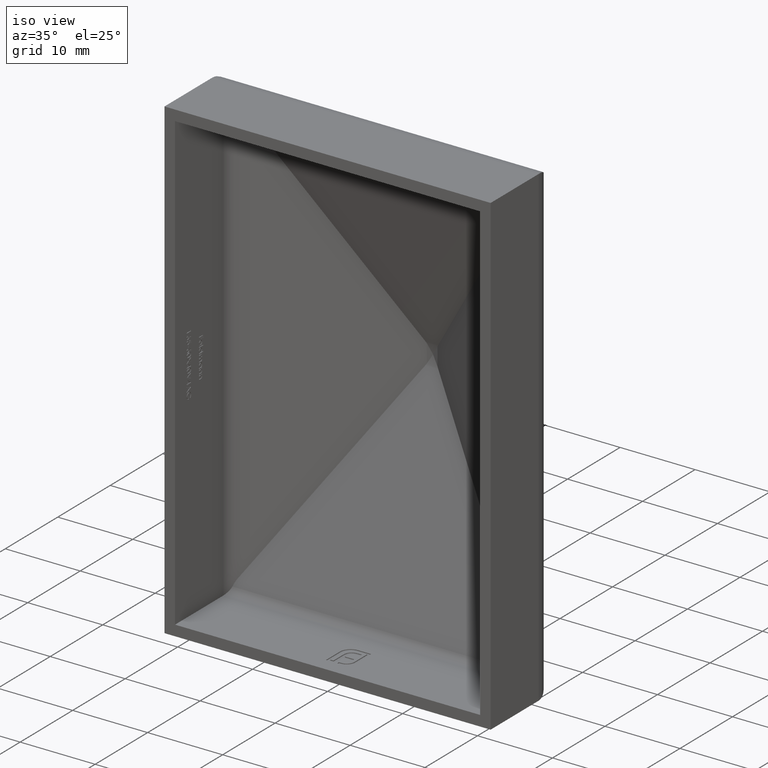
[diagram: clean part render]
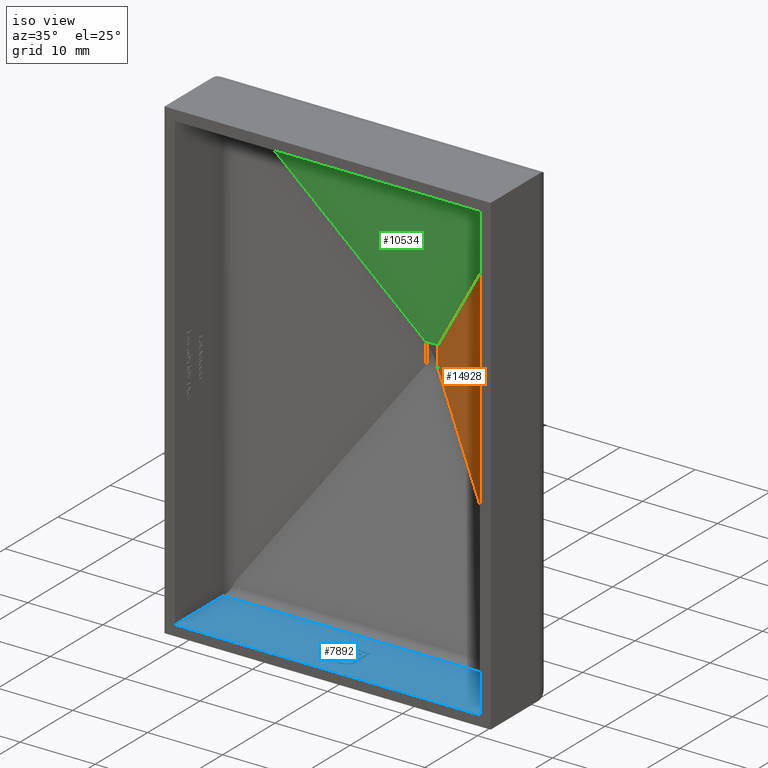
[diagram: same view with three faces highlighted in distinct colors, each labeled with its STEP entity id]
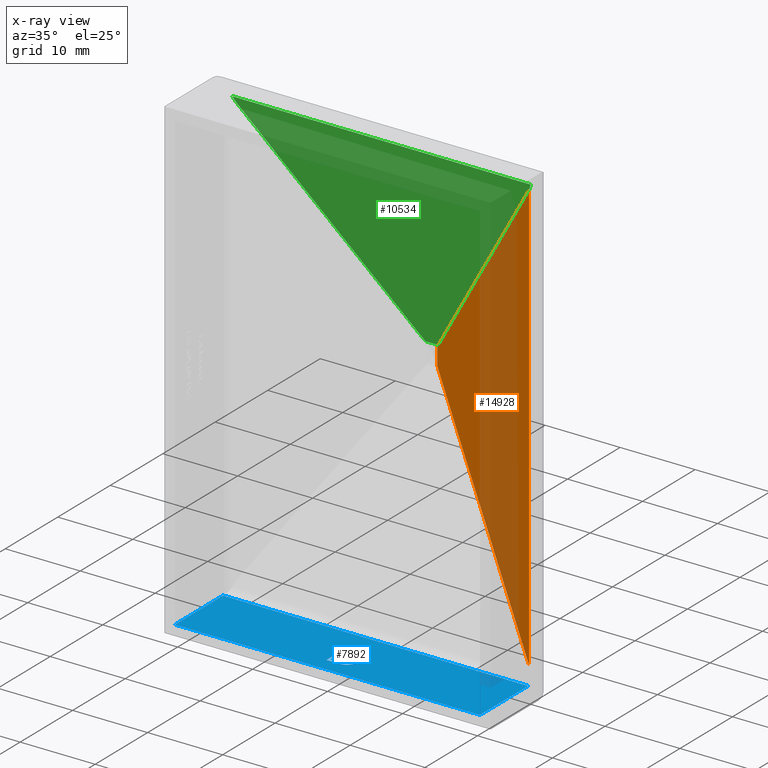
[diagram: x-ray of the same camera — body ghosted, the three highlighted faces saturated]
A machine part, iso view with three faces highlighted in distinct colors.
The next image is the same camera in x-ray (body ghosted, the three faces saturated) — at least one of them is partly hidden behind the body in this view.
Their STEP definitions:

[orange] entity #14928 — the highlighted planar face has unit normal (-0.4465, -0.8948, 0).
#182 = VECTOR ( 'NONE', #15627, 1000.000000000000227 ) ;
#472 = LINE ( 'NONE', #14652, #6614 ) ;
#523 = DIRECTION ( 'NONE',  ( -0.000000000000000000, -0.000000000000000000, -1.000000000000000000 ) ) ;
#860 = CARTESIAN_POINT ( 'NONE',  ( 19.46436875921772014, 10.57586825159577515, -28.65772203017585795 ) ) ;
#1006 = CARTESIAN_POINT ( 'NONE',  ( 0.7584469477729331999, 19.90967544081503959, 1.296075870260551266 ) ) ;
#1114 = CARTESIAN_POINT ( 'NONE',  ( 0.8592270703845148461, 19.85938857217288955, 1.450252933899332852 ) ) ;
#1167 =( BOUNDED_CURVE ( )  B_SPLINE_CURVE ( 3, ( #2247, #1006, #6168, #1114 ),
 .UNSPECIFIED., .F., .F. ) 
 B_SPLINE_CURVE_WITH_KNOTS ( ( 4, 4 ),
 ( 3.416252658695885458, 3.470417346657269864 ),
 .UNSPECIFIED. ) 
 CURVE ( )  GEOMETRIC_REPRESENTATION_ITEM ( )  RATIONAL_B_SPLINE_CURVE ( ( 1.000000000000000000, 0.9997555304909668816, 0.9997555304909668816, 1.000000000000000000 ) ) 
 REPRESENTATION_ITEM ( '' )  );
#1388 = DIRECTION ( 'NONE',  ( 0.8947933760820846461, -0.4464804745110643180, 0.000000000000000000 ) ) ;
#1427 = CARTESIAN_POINT ( 'NONE',  ( 0.7143687592177069279, 19.93166940173134449, -1.218022648407448782 ) ) ;
#1562 = ORIENTED_EDGE ( 'NONE', *, *, #4498, .T. ) ;
#1774 = DIRECTION ( 'NONE',  ( -0.000000000000000000, -0.000000000000000000, -1.000000000000000000 ) ) ;
#1777 = CARTESIAN_POINT ( 'NONE',  ( 19.46436875921772014, 10.57586825159577515, 31.75000000000000000 ) ) ;
#2247 = CARTESIAN_POINT ( 'NONE',  ( 0.7143687592177145884, 19.93166940173134094, 1.218022648407466768 ) ) ;
#2335 = AXIS2_PLACEMENT_3D ( 'NONE', #7646, #5208, #1388 ) ;
#2688 = LINE ( 'NONE', #3726, #16349 ) ;
#2957 = CARTESIAN_POINT ( 'NONE',  ( 0.8067448588618060246, 19.88557593936893753, -1.373504894460034986 ) ) ;
#3599 = EDGE_CURVE ( 'NONE', #12837, #9170, #16006, .T. ) ;
#3726 = CARTESIAN_POINT ( 'NONE',  ( -13.52660217211180793, 27.03757298671160925, 19.58705014530530875 ) ) ;
#4036 = DIRECTION ( 'NONE',  ( 0.5433272377133817610, -0.2711072850932714773, -0.7945415991174419323 ) ) ;
#4063 = ORIENTED_EDGE ( 'NONE', *, *, #7159, .F. ) ;
#4192 = FACE_OUTER_BOUND ( 'NONE', #5239, .T. ) ;
#4498 = EDGE_CURVE ( 'NONE', #9170, #8248, #2688, .T. ) ;
#4779 = EDGE_CURVE ( 'NONE', #14662, #12837, #472, .T. ) ;
#4973 = ORIENTED_EDGE ( 'NONE', *, *, #4779, .T. ) ;
#4980 = PLANE ( 'NONE',  #2335 ) ;
#5208 = DIRECTION ( 'NONE',  ( -0.4464804745110643180, -0.8947933760820846461, 0.000000000000000000 ) ) ;
#5239 = EDGE_LOOP ( 'NONE', ( #1562, #8360, #4063, #7194, #4973, #8731 ) ) ;
#6168 = CARTESIAN_POINT ( 'NONE',  ( 0.8067448588618081340, 19.88557593936893753, 1.373504894460038317 ) ) ;
#6218 = CARTESIAN_POINT ( 'NONE',  ( 13.88609968873835676, 13.35929098148145400, 20.50026825292916399 ) ) ;
#6614 = VECTOR ( 'NONE', #1774, 1000.000000000000000 ) ;
#7159 = EDGE_CURVE ( 'NONE', #13751, #7322, #7184, .T. ) ;
#7184 = LINE ( 'NONE', #6218, #182 ) ;
#7194 = ORIENTED_EDGE ( 'NONE', *, *, #8718, .F. ) ;
#7322 = VERTEX_POINT ( 'NONE', #12041 ) ;
#7646 = CARTESIAN_POINT ( 'NONE',  ( 0.7143687592177149215, 19.93166940173134449, 31.75000000000000000 ) ) ;
#8248 = VERTEX_POINT ( 'NONE', #860 ) ;
#8360 = ORIENTED_EDGE ( 'NONE', *, *, #16866, .F. ) ;
#8718 = EDGE_CURVE ( 'NONE', #14662, #13751, #1167, .T. ) ;
#8731 = ORIENTED_EDGE ( 'NONE', *, *, #3599, .T. ) ;
#9170 = VERTEX_POINT ( 'NONE', #9536 ) ;
#9531 = CARTESIAN_POINT ( 'NONE',  ( 0.8592270703845148461, 19.85938857217288955, 1.450252933899332852 ) ) ;
#9536 = CARTESIAN_POINT ( 'NONE',  ( 0.8592270703845060753, 19.85938857217288955, -1.450252933899335517 ) ) ;
#10506 = LINE ( 'NONE', #1777, #16166 ) ;
#12041 = CARTESIAN_POINT ( 'NONE',  ( 19.46436875921772014, 10.57586825159577515, 28.65772203017585440 ) ) ;
#12837 = VERTEX_POINT ( 'NONE', #1427 ) ;
#13414 = CARTESIAN_POINT ( 'NONE',  ( 0.8592270703845060753, 19.85938857217288955, -1.450252933899335517 ) ) ;
#13522 = CARTESIAN_POINT ( 'NONE',  ( 0.7584469477729290920, 19.90967544081504315, -1.296075870260541940 ) ) ;
#13751 = VERTEX_POINT ( 'NONE', #9531 ) ;
#14652 = CARTESIAN_POINT ( 'NONE',  ( 0.7143687592177145884, 19.93166940173134094, 31.75000000000000000 ) ) ;
#14662 = VERTEX_POINT ( 'NONE', #16718 ) ;
#14916 = CARTESIAN_POINT ( 'NONE',  ( 0.7143687592177069279, 19.93166940173134449, -1.218022648407448782 ) ) ;
#14928 = ADVANCED_FACE ( 'NONE', ( #4192 ), #4980, .T. ) ;
#15627 = DIRECTION ( 'NONE',  ( 0.5433272377133817610, -0.2711072850932714773, 0.7945415991174419323 ) ) ;
#16006 =( BOUNDED_CURVE ( )  B_SPLINE_CURVE ( 3, ( #14916, #13522, #2957, #13414 ),
 .UNSPECIFIED., .F., .F. ) 
 B_SPLINE_CURVE_WITH_KNOTS ( ( 4, 4 ),
 ( 3.416252658695881905, 3.470417346657270308 ),
 .UNSPECIFIED. ) 
 CURVE ( )  GEOMETRIC_REPRESENTATION_ITEM ( )  RATIONAL_B_SPLINE_CURVE ( ( 1.000000000000000000, 0.9997555304909667706, 0.9997555304909667706, 1.000000000000000000 ) ) 
 REPRESENTATION_ITEM ( '' )  );
#16166 = VECTOR ( 'NONE', #523, 1000.000000000000000 ) ;
#16349 = VECTOR ( 'NONE', #4036, 1000.000000000000227 ) ;
#16718 = CARTESIAN_POINT ( 'NONE',  ( 0.7143687592177145884, 19.93166940173134094, 1.218022648407466768 ) ) ;
#16866 = EDGE_CURVE ( 'NONE', #7322, #8248, #10506, .T. ) ;

[blue] entity #7892 — the highlighted planar face has unit normal (0, 0, 1).
#22 = CARTESIAN_POINT ( 'NONE',  ( -0.5076111054239822451, 6.037914286280331666, -30.35000000000000497 ) ) ;
#31 = B_SPLINE_CURVE_WITH_KNOTS ( 'NONE', 3,
 ( #6431, #15511, #3715, #7709, #16757, #14338, #11864 ),
 .UNSPECIFIED., .F., .F.,
 ( 4, 1, 1, 1, 4 ),
 ( 0.000000000000000000, 0.2455891591026251597, 0.4905057002791313736, 0.7406289399192063083, 1.000000000000000000 ),
 .UNSPECIFIED. ) ;
#72 = VERTEX_POINT ( 'NONE', #10303 ) ;
#139 = CARTESIAN_POINT ( 'NONE',  ( -0.8384651271285192831, 4.198623746209474206, -30.35000000000000142 ) ) ;
#158 = EDGE_LOOP ( 'NONE', ( #5186, #981, #6722, #6792, #3525, #2527, #12166, #13159, #2656, #4105, #10190, #11407, #14744, #7441, #2242, #3883, #5102, #226, #11366, #6353, #5977, #175, #14581, #13761, #1004, #1732, #949, #15699, #15326, #2251, #6129, #2149, #9216, #14415, #13544, #9201, #16668, #15845, #1963, #12373 ) ) ;
#175 = ORIENTED_EDGE ( 'NONE', *, *, #4529, .T. ) ;
#223 = CARTESIAN_POINT ( 'NONE',  ( -1.056041520877061490, 2.320037322136696112, -30.35000000000000853 ) ) ;
#226 = ORIENTED_EDGE ( 'NONE', *, *, #5148, .T. ) ;
#238 = VERTEX_POINT ( 'NONE', #16636 ) ;
#337 = CARTESIAN_POINT ( 'NONE',  ( -0.1714485654303620765, 5.300793095404714883, -30.35000000000000142 ) ) ;
#354 = VERTEX_POINT ( 'NONE', #1987 ) ;
#381 = VERTEX_POINT ( 'NONE', #5847 ) ;
#390 = VERTEX_POINT ( 'NONE', #16448 ) ;
#404 = CARTESIAN_POINT ( 'NONE',  ( 0.7917952499048876991, 2.138855311612456678, -30.35000000000001208 ) ) ;
#439 = VERTEX_POINT ( 'NONE', #13918 ) ;
#441 = CARTESIAN_POINT ( 'NONE',  ( -0.3535106134826130342, 4.562747842313975788, -30.35000000000000142 ) ) ;
#454 = CARTESIAN_POINT ( 'NONE',  ( -0.2155353393981716548, 5.747375787263824698, -30.35000000000000142 ) ) ;
#549 = CARTESIAN_POINT ( 'NONE',  ( -1.273617914625603476, 2.320037322136695668, -30.35000000000000142 ) ) ;
#595 = VERTEX_POINT ( 'NONE', #7405 ) ;
#633 = CARTESIAN_POINT ( 'NONE',  ( -1.426035993195436946, 5.340952355792298434, -30.35000000000000142 ) ) ;
#641 = CARTESIAN_POINT ( 'NONE',  ( 0.2167599720084063819, 3.890016328434806603, -30.35000000000000142 ) ) ;
#671 = CARTESIAN_POINT ( 'NONE',  ( 1.514462327968285171, 2.991952414275720340, -30.35000000000000142 ) ) ;
#728 = CARTESIAN_POINT ( 'NONE',  ( -1.255464568732410857, 4.898598228390397935, -30.35000000000001208 ) ) ;
#778 = CARTESIAN_POINT ( 'NONE',  ( 1.568376718239407275, 3.279601036166159833, -30.35000000000000497 ) ) ;
#799 = CARTESIAN_POINT ( 'NONE',  ( 0.1918591089339952427, 2.320037322136695668, -30.35000000000000142 ) ) ;
#806 = VERTEX_POINT ( 'NONE', #12168 ) ;
#815 = EDGE_CURVE ( 'NONE', #15572, #7249, #7093, .T. ) ;
#937 = DIRECTION ( 'NONE',  ( 0.000000000000000000, -1.000000000000000000, -1.746401457889446572E-13 ) ) ;
#949 = ORIENTED_EDGE ( 'NONE', *, *, #5021, .T. ) ;
#981 = ORIENTED_EDGE ( 'NONE', *, *, #14736, .T. ) ;
#1004 = ORIENTED_EDGE ( 'NONE', *, *, #815, .T. ) ;
#1144 = CARTESIAN_POINT ( 'NONE',  ( -0.7533348512236172079, 4.752553017115031864, -30.35000000000000853 ) ) ;
#1175 = B_SPLINE_CURVE_WITH_KNOTS ( 'NONE', 3,
 ( #14955, #8494, #778, #4644, #11231, #3367, #671 ),
 .UNSPECIFIED., .F., .F.,
 ( 4, 1, 1, 1, 4 ),
 ( 0.000000000000000000, 0.2525049582863178599, 0.5021773156323378062, 0.7501012456036258991, 1.000000000000000000 ),
 .UNSPECIFIED. ) ;
#1196 = CARTESIAN_POINT ( 'NONE',  ( -0.8630016456978838457, 5.906388953036446843, -30.34999999999999432 ) ) ;
#1246 = B_SPLINE_CURVE_WITH_KNOTS ( 'NONE', 3,
 ( #2324, #5076, #1196, #10342, #13019, #2494, #11660 ),
 .UNSPECIFIED., .F., .F.,
 ( 4, 1, 1, 1, 4 ),
 ( 0.000000000000000000, 0.2494004055988077451, 0.4982698082868720624, 0.7477365097776044189, 0.9999999999999998890 ),
 .UNSPECIFIED. ) ;
#1255 = EDGE_CURVE ( 'NONE', #13675, #5813, #6484, .T. ) ;
#1268 = CARTESIAN_POINT ( 'NONE',  ( 1.569979006298119595, 4.722766503382322512, -30.35000000000000142 ) ) ;
#1331 = CARTESIAN_POINT ( 'NONE',  ( 0.6772218334499738868, 6.067413109400515481, -30.35000000000000142 ) ) ;
#1350 = CARTESIAN_POINT ( 'NONE',  ( -0.3140542005961393102, 6.065810821341805159, -30.35000000000000497 ) ) ;
#1358 = ORIENTED_EDGE ( 'NONE', *, *, #7596, .T. ) ;
#1431 = EDGE_CURVE ( 'NONE', #806, #15572, #9107, .T. ) ;
#1440 = VERTEX_POINT ( 'NONE', #2843 ) ;
#1446 = CARTESIAN_POINT ( 'NONE',  ( 1.485736530145321810, 2.902778846682815050, -30.34999999999999787 ) ) ;
#1506 = CARTESIAN_POINT ( 'NONE',  ( 1.017504433895846105, 2.273167788205809448, -30.35000000000000142 ) ) ;
#1594 = CARTESIAN_POINT ( 'NONE',  ( 0.2223689499801084490, 2.000292489423796560, -30.35000000000000142 ) ) ;
#1597 = FACE_BOUND ( 'NONE', #158, .T. ) ;
#1618 = VECTOR ( 'NONE', #13460, 1000.000000000000000 ) ;
#1649 = CARTESIAN_POINT ( 'NONE',  ( -0.1332717438268450072, 5.312232085116086466, -30.35000000000000853 ) ) ;
#1690 = ORIENTED_EDGE ( 'NONE', *, *, #5080, .T. ) ;
#1732 = ORIENTED_EDGE ( 'NONE', *, *, #10137, .T. ) ;
#1858 = VERTEX_POINT ( 'NONE', #549 ) ;
#1871 = CARTESIAN_POINT ( 'NONE',  ( -0.3975973874504226124, 2.000000000000003553, -30.35000000000000142 ) ) ;
#1884 = DIRECTION ( 'NONE',  ( -1.000000000000000000, -2.396377940337021966E-14, 9.585511761348087862E-14 ) ) ;
#1888 = LINE ( 'NONE', #8955, #14322 ) ;
#1907 = EDGE_CURVE ( 'NONE', #381, #16073, #10735, .T. ) ;
#1911 = CARTESIAN_POINT ( 'NONE',  ( -0.9898557912325222086, 5.407187820307674642, -30.34999999999999432 ) ) ;
#1942 = VECTOR ( 'NONE', #8451, 1000.000000000000000 ) ;
#1960 = LINE ( 'NONE', #1331, #15402 ) ;
#1963 = ORIENTED_EDGE ( 'NONE', *, *, #4805, .T. ) ;
#1980 = CARTESIAN_POINT ( 'NONE',  ( -1.411593188710044799, 5.366923256356430194, -30.35000000000000142 ) ) ;
#1987 = CARTESIAN_POINT ( 'NONE',  ( -0.3535106134826130342, 4.562747842313975788, -30.35000000000000142 ) ) ;
#2021 = CARTESIAN_POINT ( 'NONE',  ( 0.05378126293338558739, 4.931033226544008663, -30.35000000000000142 ) ) ;
#2126 = CARTESIAN_POINT ( 'NONE',  ( 0.5958178940768240617, 2.396431398560824544, -30.35000000000000497 ) ) ;
#2127 = CARTESIAN_POINT ( 'NONE',  ( 0.1239424786785339183, 4.944156525249453260, -30.35000000000000853 ) ) ;
#2149 = ORIENTED_EDGE ( 'NONE', *, *, #9800, .T. ) ;
#2171 = VERTEX_POINT ( 'NONE', #14887 ) ;
#2242 = ORIENTED_EDGE ( 'NONE', *, *, #7452, .T. ) ;
#2251 = ORIENTED_EDGE ( 'NONE', *, *, #10777, .T. ) ;
#2267 = CARTESIAN_POINT ( 'NONE',  ( 0.9606786933283780749, 2.654825718111416766, -30.34999999999999787 ) ) ;
#2289 = CARTESIAN_POINT ( 'NONE',  ( -0.7666200139957924931, 4.717051551201310033, -30.35000000000000142 ) ) ;
#2318 = CARTESIAN_POINT ( 'NONE',  ( -0.8384651271285192831, 4.198623746209474206, -30.35000000000000142 ) ) ;
#2324 = CARTESIAN_POINT ( 'NONE',  ( -0.9429671098670310281, 5.857592722183348144, -30.35000000000000142 ) ) ;
#2370 = DIRECTION ( 'NONE',  ( 3.088355291325781742E-15, -1.000000000000000000, 9.882736932242501573E-14 ) ) ;
#2490 = EDGE_CURVE ( 'NONE', #2171, #238, #6222, .T. ) ;
#2494 = CARTESIAN_POINT ( 'NONE',  ( -0.6318107140702540203, 6.002294264141054825, -30.35000000000000142 ) ) ;
#2513 = VERTEX_POINT ( 'NONE', #9546 ) ;
#2515 = EDGE_CURVE ( 'NONE', #11876, #72, #15725, .T. ) ;
#2527 = ORIENTED_EDGE ( 'NONE', *, *, #14956, .T. ) ;
#2541 = VECTOR ( 'NONE', #14745, 1000.000000000000000 ) ;
#2641 = CARTESIAN_POINT ( 'NONE',  ( -0.9429671098670310281, 5.857592722183348144, -30.35000000000000142 ) ) ;
#2656 = ORIENTED_EDGE ( 'NONE', *, *, #15610, .T. ) ;
#2758 = VECTOR ( 'NONE', #1884, 1000.000000000000000 ) ;
#2766 = EDGE_CURVE ( 'NONE', #11410, #9162, #4949, .T. ) ;
#2838 = CARTESIAN_POINT ( 'NONE',  ( -20.34999999999999076, 3.608106196969986905E-15, -30.35000000000000142 ) ) ;
#2843 = CARTESIAN_POINT ( 'NONE',  ( -0.2155353393981716548, 6.067413109400516369, -30.35000000000000142 ) ) ;
#2938 = ORIENTED_EDGE ( 'NONE', *, *, #2490, .F. ) ;
#3009 = CARTESIAN_POINT ( 'NONE',  ( 0.4603525481732821945, 2.023855686642844987, -30.35000000000000497 ) ) ;
#3058 = CARTESIAN_POINT ( 'NONE',  ( 0.2743177046886022263, 4.953813855843249847, -30.35000000000000142 ) ) ;
#3101 = VERTEX_POINT ( 'NONE', #14731 ) ;
#3200 = EDGE_CURVE ( 'NONE', #354, #5275, #6604, .T. ) ;
#3221 = CARTESIAN_POINT ( 'NONE',  ( -0.1053184044786475010, 2.160018661068349832, -30.35000000000000142 ) ) ;
#3367 = CARTESIAN_POINT ( 'NONE',  ( 1.523157851825009290, 3.023399155901620894, -30.35000000000000142 ) ) ;
#3373 = CARTESIAN_POINT ( 'NONE',  ( -0.1714485654303620765, 5.300793095404714883, -30.35000000000000142 ) ) ;
#3392 = CARTESIAN_POINT ( 'NONE',  ( -0.9902156529353607350, 5.825923977638615803, -30.34999999999999787 ) ) ;
#3483 = CARTESIAN_POINT ( 'NONE',  ( -0.01224632610216051104, 4.909727081875441712, -30.35000000000000142 ) ) ;
#3508 = CARTESIAN_POINT ( 'NONE',  ( -0.8374491170439751775, 4.246822666642392718, -30.34999999999999787 ) ) ;
#3519 = CARTESIAN_POINT ( 'NONE',  ( -0.1053184044786474871, 2.320037322136695668, -30.35000000000000142 ) ) ;
#3525 = ORIENTED_EDGE ( 'NONE', *, *, #13900, .T. ) ;
#3640 = DIRECTION ( 'NONE',  ( 1.000000000000000000, 0.000000000000000000, 0.000000000000000000 ) ) ;
#3707 = CARTESIAN_POINT ( 'NONE',  ( -0.07063132933347032738, 4.886513121156715656, -30.35000000000000497 ) ) ;
#3715 = CARTESIAN_POINT ( 'NONE',  ( -0.2643639572356016321, 4.732175469303321336, -30.35000000000001563 ) ) ;
#3753 = CARTESIAN_POINT ( 'NONE',  ( -0.8384651271285193941, 3.259330534173085603, -30.34999999999999787 ) ) ;
#3883 = ORIENTED_EDGE ( 'NONE', *, *, #11145, .T. ) ;
#3897 = VECTOR ( 'NONE', #2370, 1000.000000000000000 ) ;
#3904 = CARTESIAN_POINT ( 'NONE',  ( -0.4113747413207299308, 6.054426504352363736, -30.35000000000000497 ) ) ;
#3991 = CARTESIAN_POINT ( 'NONE',  ( 1.360158619080951148, 2.655586657336135747, -30.35000000000000142 ) ) ;
#4025 = CARTESIAN_POINT ( 'NONE',  ( 0.3518777700023413835, 5.372638208537442672, -30.35000000000000142 ) ) ;
#4105 = ORIENTED_EDGE ( 'NONE', *, *, #6224, .T. ) ;
#4177 = VECTOR ( 'NONE', #8119, 1000.000000000000000 ) ;
#4195 = CARTESIAN_POINT ( 'NONE',  ( 0.07238092798428570618, 5.356208707926714219, -30.34999999999999076 ) ) ;
#4205 = CARTESIAN_POINT ( 'NONE',  ( -0.3218555176182755773, 5.744615803771209173, -30.35000000000000853 ) ) ;
#4250 = CARTESIAN_POINT ( 'NONE',  ( 1.569979006298119595, 3.378119897364127766, -30.35000000000000142 ) ) ;
#4257 = CARTESIAN_POINT ( 'NONE',  ( 0.7118805972895819734, 2.101114880024047782, -30.34999999999998721 ) ) ;
#4309 = CARTESIAN_POINT ( 'NONE',  ( -18.74999999999998934, 9.144198849864384471, -30.35000000000000142 ) ) ;
#4346 = EDGE_CURVE ( 'NONE', #11900, #10841, #10525, .T. ) ;
#4378 = CARTESIAN_POINT ( 'NONE',  ( -0.6213302866039281946, 5.670410478004447974, -30.34999999999999076 ) ) ;
#4388 = VECTOR ( 'NONE', #937, 1000.000000000000000 ) ;
#4442 = CARTESIAN_POINT ( 'NONE',  ( 0.2167599720084063541, 3.476906927921626700, -30.35000000000000497 ) ) ;
#4529 = EDGE_CURVE ( 'NONE', #5813, #15605, #5620, .T. ) ;
#4532 = CARTESIAN_POINT ( 'NONE',  ( -0.3973694555212009538, 4.297454346209211629, -30.34999999999999432 ) ) ;
#4537 = CARTESIAN_POINT ( 'NONE',  ( -20.34999999999999076, 3.076925082857724936E-15, -30.35000000000000142 ) ) ;
#4644 = CARTESIAN_POINT ( 'NONE',  ( 1.556992401249964519, 3.182280495441569101, -30.34999999999999787 ) ) ;
#4671 = CARTESIAN_POINT ( 'NONE',  ( -1.320473831698220746, 5.514706226021781177, -30.34999999999999787 ) ) ;
#4746 = CARTESIAN_POINT ( 'NONE',  ( -0.3975973874504226124, 4.080242593888503855, -30.35000000000000853 ) ) ;
#4796 = CARTESIAN_POINT ( 'NONE',  ( 1.207575573631549659, 3.068275607748206735, -30.35000000000001208 ) ) ;
#4805 = EDGE_CURVE ( 'NONE', #16073, #11900, #11309, .T. ) ;
#4822 = VERTEX_POINT ( 'NONE', #16210 ) ;
#4853 = CARTESIAN_POINT ( 'NONE',  ( -0.5461861441567442688, 5.080359225565667991, -30.35000000000000497 ) ) ;
#4920 = AXIS2_PLACEMENT_3D ( 'NONE', #11020, #8562, #6228 ) ;
#4924 = CARTESIAN_POINT ( 'NONE',  ( -0.01224632610216051104, 4.909727081875441712, -30.35000000000000142 ) ) ;
#4949 = LINE ( 'NONE', #1268, #5808 ) ;
#5006 = LINE ( 'NONE', #3221, #1942 ) ;
#5007 = DIRECTION ( 'NONE',  ( -1.000000000000000000, 2.343516662241357512E-14, -1.874813329793086010E-13 ) ) ;
#5020 = DIRECTION ( 'NONE',  ( -1.952930551867797269E-15, 1.000000000000000000, 6.249377765976951261E-14 ) ) ;
#5021 = EDGE_CURVE ( 'NONE', #10450, #8552, #1888, .T. ) ;
#5052 = DIRECTION ( 'NONE',  ( -1.000000000000000000, 2.529510048133534773E-14, 0.000000000000000000 ) ) ;
#5059 = CARTESIAN_POINT ( 'NONE',  ( -1.273617914625603698, 3.504665267086544578, -30.35000000000000497 ) ) ;
#5076 = CARTESIAN_POINT ( 'NONE',  ( -0.9162930243848298462, 5.873869684325799589, -30.35000000000000142 ) ) ;
#5080 = EDGE_CURVE ( 'NONE', #6806, #238, #15321, .T. ) ;
#5102 = ORIENTED_EDGE ( 'NONE', *, *, #12673, .T. ) ;
#5148 = EDGE_CURVE ( 'NONE', #10814, #1858, #6383, .T. ) ;
#5186 = ORIENTED_EDGE ( 'NONE', *, *, #8288, .T. ) ;
#5206 = VERTEX_POINT ( 'NONE', #7879 ) ;
#5275 = VERTEX_POINT ( 'NONE', #10188 ) ;
#5312 = DIRECTION ( 'NONE',  ( 1.000000000000000000, 0.000000000000000000, -1.287750569958906356E-13 ) ) ;
#5351 = CARTESIAN_POINT ( 'NONE',  ( -0.2155353393981716548, 6.067413109400516369, -30.35000000000000142 ) ) ;
#5465 = B_SPLINE_CURVE_WITH_KNOTS ( 'NONE', 3,
 ( #6757, #10670, #22, #3904, #1350, #10610, #5351 ),
 .UNSPECIFIED., .F., .F.,
 ( 4, 1, 1, 1, 4 ),
 ( 0.000000000000000000, 0.2498987543963735458, 0.4978226843676622493, 0.7474950417136815295, 0.9999999999999998890 ),
 .UNSPECIFIED. ) ;
#5547 = CARTESIAN_POINT ( 'NONE',  ( -0.4255458606110481545, 5.729629388067862372, -30.34999999999999432 ) ) ;
#5553 = CARTESIAN_POINT ( 'NONE',  ( -1.411593188710044799, 5.366923256356430194, -30.35000000000000142 ) ) ;
#5620 = B_SPLINE_CURVE_WITH_KNOTS ( 'NONE', 3,
 ( #12809, #1144, #10059, #11606, #15213, #7587, #4853 ),
 .UNSPECIFIED., .F., .F.,
 ( 4, 1, 1, 1, 4 ),
 ( 0.000000000000000000, 0.2650465622674533228, 0.5182727197139301856, 0.7624607574988784275, 1.000000000000000000 ),
 .UNSPECIFIED. ) ;
#5637 = LINE ( 'NONE', #12959, #5856 ) ;
#5660 = VECTOR ( 'NONE', #5312, 1000.000000000000000 ) ;
#5688 = VECTOR ( 'NONE', #14735, 1000.000000000000000 ) ;
#5716 = CARTESIAN_POINT ( 'NONE',  ( 0.2827115206306824446, 2.000870976990909877, -30.34999999999999432 ) ) ;
#5722 = CARTESIAN_POINT ( 'NONE',  ( 0.04327035222767387779, 2.320037322136696112, -30.34999999999999432 ) ) ;
#5808 = VECTOR ( 'NONE', #14221, 1000.000000000000000 ) ;
#5813 = VERTEX_POINT ( 'NONE', #2289 ) ;
#5847 = CARTESIAN_POINT ( 'NONE',  ( -1.593655236762295813, 2.000000000000003553, -30.35000000000000142 ) ) ;
#5849 = B_SPLINE_CURVE_WITH_KNOTS ( 'NONE', 3,
 ( #3058, #13568, #14858, #2127, #2021, #9860, #3483 ),
 .UNSPECIFIED., .F., .F.,
 ( 4, 1, 1, 1, 4 ),
 ( 0.000000000000000000, 0.2663974462967138579, 0.5202005568595411411, 0.7659044003744408524, 1.000000000000000000 ),
 .UNSPECIFIED. ) ;
#5856 = VECTOR ( 'NONE', #5007, 1000.000000000000000 ) ;
#5870 = CARTESIAN_POINT ( 'NONE',  ( -0.3606090146142290065, 4.541116454859017715, -30.35000000000000142 ) ) ;
#5904 = EDGE_CURVE ( 'NONE', #439, #11876, #8583, .T. ) ;
#5953 = DIRECTION ( 'NONE',  ( 4.193661395589680760E-15, -1.000000000000000000, 0.000000000000000000 ) ) ;
#5977 = ORIENTED_EDGE ( 'NONE', *, *, #1255, .T. ) ;
#5985 = CARTESIAN_POINT ( 'NONE',  ( -0.9650104968509358727, 5.433053417308144617, -30.35000000000000142 ) ) ;
#6040 = CARTESIAN_POINT ( 'NONE',  ( -1.270997795958512588, 4.795372101876201221, -30.34999999999999787 ) ) ;
#6059 = CARTESIAN_POINT ( 'NONE',  ( 1.514462327968285171, 2.991952414275720340, -30.35000000000000142 ) ) ;
#6060 = CARTESIAN_POINT ( 'NONE',  ( -0.9429671098670310281, 5.857592722183348144, -30.35000000000000142 ) ) ;
#6084 = LINE ( 'NONE', #641, #12612 ) ;
#6092 = DIRECTION ( 'NONE',  ( 5.611237078606051005E-15, 1.000000000000000000, 8.977979325769681608E-14 ) ) ;
#6129 = ORIENTED_EDGE ( 'NONE', *, *, #3200, .T. ) ;
#6164 = VERTEX_POINT ( 'NONE', #1871 ) ;
#6186 = CARTESIAN_POINT ( 'NONE',  ( 1.249941684161427258, 3.378119897364127766, -30.35000000000000142 ) ) ;
#6222 = LINE ( 'NONE', #4309, #9491 ) ;
#6224 = EDGE_CURVE ( 'NONE', #13234, #11949, #5006, .T. ) ;
#6228 = DIRECTION ( 'NONE',  ( 1.000000000000000000, 0.000000000000000000, -0.000000000000000000 ) ) ;
#6250 = EDGE_CURVE ( 'NONE', #8552, #14131, #5849, .T. ) ;
#6264 = LINE ( 'NONE', #4442, #2758 ) ;
#6320 = CARTESIAN_POINT ( 'NONE',  ( -0.1758398249650108824, 4.819897577890956519, -30.35000000000000853 ) ) ;
#6323 = CARTESIAN_POINT ( 'NONE',  ( -1.593655236762296035, 4.689293212036393044, -30.35000000000000497 ) ) ;
#6329 = VECTOR ( 'NONE', #8793, 1000.000000000000000 ) ;
#6338 = VERTEX_POINT ( 'NONE', #16310 ) ;
#6353 = ORIENTED_EDGE ( 'NONE', *, *, #9936, .T. ) ;
#6358 = DIRECTION ( 'NONE',  ( 4.193661395589892175E-15, -1.000000000000000000, 0.000000000000000000 ) ) ;
#6374 = CARTESIAN_POINT ( 'NONE',  ( -0.2060290724191838618, 4.791689225117981898, -30.35000000000000853 ) ) ;
#6383 = LINE ( 'NONE', #5059, #3897 ) ;
#6399 = B_SPLINE_CURVE_WITH_KNOTS ( 'NONE', 3,
 ( #13361, #8183, #4205, #5547, #14706, #4378, #9712, #9550, #13525, #7009, #14653 ),
 .UNSPECIFIED., .F., .F.,
 ( 4, 1, 1, 1, 1, 1, 1, 1, 4 ),
 ( 0.000000000000000000, 0.1281924671261277793, 0.2535812564278780434, 0.3754453157299565413, 0.4969638611844704457, 0.6193912034695908675, 0.7436315793729396662, 0.8699315812134844617, 1.000000000000000000 ),
 .UNSPECIFIED. ) ;
#6406 = CARTESIAN_POINT ( 'NONE',  ( 0.8311173314672353207, 3.890016328434806159, -30.35000000000000142 ) ) ;
#6431 = CARTESIAN_POINT ( 'NONE',  ( -0.2212502915791840774, 4.777466759972011978, -30.35000000000000142 ) ) ;
#6478 = VECTOR ( 'NONE', #5020, 1000.000000000000000 ) ;
#6484 = B_SPLINE_CURVE_WITH_KNOTS ( 'NONE', 3,
 ( #2318, #3508, #14088, #13973, #14030, #7574, #16616 ),
 .UNSPECIFIED., .F., .F.,
 ( 4, 1, 1, 1, 4 ),
 ( 0.000000000000000000, 0.2752367449667309507, 0.5313220627563629561, 0.7730509928784794482, 1.000000000000000000 ),
 .UNSPECIFIED. ) ;
#6604 = B_SPLINE_CURVE_WITH_KNOTS ( 'NONE', 3,
 ( #441, #5870, #16132, #12375, #8328, #4532, #10887 ),
 .UNSPECIFIED., .F., .F.,
 ( 4, 1, 1, 1, 4 ),
 ( 0.000000000000000000, 0.2296577939907727406, 0.4728894664265903547, 0.7276593582172861119, 1.000000000000000000 ),
 .UNSPECIFIED. ) ;
#6620 = ORIENTED_EDGE ( 'NONE', *, *, #9965, .T. ) ;
#6722 = ORIENTED_EDGE ( 'NONE', *, *, #15004, .T. ) ;
#6734 = VERTEX_POINT ( 'NONE', #6406 ) ;
#6736 = CARTESIAN_POINT ( 'NONE',  ( 1.328529574296529736, 2.607506930256149325, -30.35000000000000142 ) ) ;
#6757 = CARTESIAN_POINT ( 'NONE',  ( -0.6017028224865785813, 6.011896431070681501, -30.34999999999999432 ) ) ;
#6792 = ORIENTED_EDGE ( 'NONE', *, *, #2766, .T. ) ;
#6796 = CARTESIAN_POINT ( 'NONE',  ( -0.2212502915791840774, 4.777466759972011978, -30.35000000000000142 ) ) ;
#6806 = VERTEX_POINT ( 'NONE', #14480 ) ;
#6877 = VECTOR ( 'NONE', #6358, 1000.000000000000000 ) ;
#6932 = CARTESIAN_POINT ( 'NONE',  ( 1.249941684161427258, 4.562747842313975788, -30.35000000000000497 ) ) ;
#7002 = CARTESIAN_POINT ( 'NONE',  ( 0.8435182526899006605, 2.167619243566862419, -30.35000000000000497 ) ) ;
#7009 = CARTESIAN_POINT ( 'NONE',  ( -0.9388295186508827106, 5.458112796430774516, -30.34999999999999787 ) ) ;
#7093 = LINE ( 'NONE', #8403, #2541 ) ;
#7164 = CARTESIAN_POINT ( 'NONE',  ( -0.3975973874504226124, 3.890016328434806159, -30.35000000000000142 ) ) ;
#7249 = VERTEX_POINT ( 'NONE', #13218 ) ;
#7288 = VECTOR ( 'NONE', #6092, 1000.000000000000000 ) ;
#7343 = CARTESIAN_POINT ( 'NONE',  ( -1.593655236762296035, 4.689293212036393044, -30.35000000000000497 ) ) ;
#7386 = CARTESIAN_POINT ( 'NONE',  ( -0.5461861441567442688, 5.080359225565667991, -30.35000000000000497 ) ) ;
#7388 = CARTESIAN_POINT ( 'NONE',  ( -0.3975973874504226124, 2.160018661068349832, -30.35000000000000497 ) ) ;
#7405 = CARTESIAN_POINT ( 'NONE',  ( 0.8311173314672353207, 3.476906927921626700, -30.35000000000000142 ) ) ;
#7441 = ORIENTED_EDGE ( 'NONE', *, *, #13784, .T. ) ;
#7452 = EDGE_CURVE ( 'NONE', #11490, #10348, #14876, .T. ) ;
#7488 = CARTESIAN_POINT ( 'NONE',  ( -0.1252557962340487829, 4.856242771994053520, -30.34999999999999432 ) ) ;
#7505 = CARTESIAN_POINT ( 'NONE',  ( 1.569979006298119595, 6.067413109400516369, -30.35000000000000142 ) ) ;
#7574 = CARTESIAN_POINT ( 'NONE',  ( -0.7776076344434568188, 4.678838170083142067, -30.34999999999999787 ) ) ;
#7587 = CARTESIAN_POINT ( 'NONE',  ( -0.5695567871135029936, 5.055679031104507004, -30.35000000000000853 ) ) ;
#7596 = EDGE_CURVE ( 'NONE', #2171, #12626, #12052, .T. ) ;
#7637 = VECTOR ( 'NONE', #10368, 1000.000000000000000 ) ;
#7709 = CARTESIAN_POINT ( 'NONE',  ( -0.2986147302999618280, 4.679357120578523599, -30.34999999999999787 ) ) ;
#7863 = CARTESIAN_POINT ( 'NONE',  ( 1.376426454336571625, 2.681715281692526709, -30.34999999999999787 ) ) ;
#7879 = CARTESIAN_POINT ( 'NONE',  ( -0.9650104968509358727, 5.433053417308144617, -30.35000000000000142 ) ) ;
#7885 = LINE ( 'NONE', #11909, #15367 ) ;
#7892 = ADVANCED_FACE ( 'NONE', ( #14647, #1597 ), #12153, .T. ) ;
#7977 = CARTESIAN_POINT ( 'NONE',  ( 1.148102815359973272, 2.386213402904190151, -30.35000000000000142 ) ) ;
#8119 = DIRECTION ( 'NONE',  ( 1.000000000000000000, 0.000000000000000000, -1.874813329793084747E-13 ) ) ;
#8183 = CARTESIAN_POINT ( 'NONE',  ( -0.2512356642514527172, 5.746449036491528162, -30.35000000000000142 ) ) ;
#8224 = EDGE_CURVE ( 'NONE', #3101, #2513, #9028, .T. ) ;
#8288 = EDGE_CURVE ( 'NONE', #10841, #6338, #1246, .T. ) ;
#8328 = CARTESIAN_POINT ( 'NONE',  ( -0.3969282972715768021, 4.349684282542246372, -30.35000000000000497 ) ) ;
#8346 = CARTESIAN_POINT ( 'NONE',  ( 0.1918591089339952427, 2.000000000000003553, -30.35000000000000142 ) ) ;
#8403 = CARTESIAN_POINT ( 'NONE',  ( 0.5914975507347883799, 5.372638208537442672, -30.35000000000000497 ) ) ;
#8451 = DIRECTION ( 'NONE',  ( 6.639963876350506219E-16, 1.000000000000000000, 1.699830752345729592E-13 ) ) ;
#8462 = CARTESIAN_POINT ( 'NONE',  ( -1.592784259771389710, 4.780145623733080384, -30.35000000000000497 ) ) ;
#8494 = CARTESIAN_POINT ( 'NONE',  ( 1.569442905619184314, 3.345157017756477114, -30.34999999999999787 ) ) ;
#8495 = CARTESIAN_POINT ( 'NONE',  ( -1.272735891918076012, 4.725003041061760278, -30.34999999999999787 ) ) ;
#8552 = VERTEX_POINT ( 'NONE', #9605 ) ;
#8562 = DIRECTION ( 'NONE',  ( 0.000000000000000000, 0.000000000000000000, 1.000000000000000000 ) ) ;
#8583 = B_SPLINE_CURVE_WITH_KNOTS ( 'NONE', 3,
 ( #15682, #6736, #11862, #7977, #1506, #9115, #14288 ),
 .UNSPECIFIED., .F., .F.,
 ( 4, 1, 1, 1, 4 ),
 ( 0.000000000000000000, 0.2502112839297327418, 0.4976763372912434980, 0.7465535718222464645, 1.000000000000000000 ),
 .UNSPECIFIED. ) ;
#8607 = CARTESIAN_POINT ( 'NONE',  ( 0.2979379987738038915, 2.322657440803786777, -30.35000000000000497 ) ) ;
#8616 = CARTESIAN_POINT ( 'NONE',  ( -1.569799550119454823, 4.957786651275680079, -30.35000000000001208 ) ) ;
#8655 = CARTESIAN_POINT ( 'NONE',  ( -1.100299755249490863, 5.271905134034180485, -30.35000000000000142 ) ) ;
#8793 = DIRECTION ( 'NONE',  ( -1.000000000000000000, 1.991989162905155652E-14, -7.967956651620622609E-14 ) ) ;
#8866 = CARTESIAN_POINT ( 'NONE',  ( -21.74999999999998934, 3.076925082857724936E-15, -30.35000000000000142 ) ) ;
#8922 = CARTESIAN_POINT ( 'NONE',  ( 0.8311173314672350987, 3.683461628178215985, -30.35000000000000142 ) ) ;
#8955 = CARTESIAN_POINT ( 'NONE',  ( 0.5527175180779185792, 4.953813855843248071, -30.34999999999999432 ) ) ;
#8958 = B_SPLINE_CURVE_WITH_KNOTS ( 'NONE', 3,
 ( #4924, #14055, #3707, #7488, #6320, #6374, #15448 ),
 .UNSPECIFIED., .F., .F.,
 ( 4, 1, 1, 1, 4 ),
 ( 0.000000000000000000, 0.2524546485597138346, 0.5031396088336661521, 0.7494862726423872079, 1.000000000000000000 ),
 .UNSPECIFIED. ) ;
#9000 = CARTESIAN_POINT ( 'NONE',  ( 20.34999999999999432, 9.144198849864439538, -30.35000000000000142 ) ) ;
#9028 = B_SPLINE_CURVE_WITH_KNOTS ( 'NONE', 3,
 ( #11374, #2267, #16619, #14035, #12635, #10166, #4796, #11487, #12525, #13925, #6186 ),
 .UNSPECIFIED., .F., .F.,
 ( 4, 1, 1, 1, 1, 1, 1, 1, 4 ),
 ( 0.000000000000000000, 0.1300684187865162600, 0.2563684206270603338, 0.3806087965304095211, 0.5030361388155298874, 0.6245546842700435697, 0.7464187435721219011, 0.8718075328738724705, 1.000000000000000000 ),
 .UNSPECIFIED. ) ;
#9106 = LINE ( 'NONE', #5722, #4177 ) ;
#9107 = B_SPLINE_CURVE_WITH_KNOTS ( 'NONE', 3,
 ( #337, #1649, #10621, #4195, #9251, #11882, #4025 ),
 .UNSPECIFIED., .F., .F.,
 ( 4, 1, 1, 1, 4 ),
 ( 0.000000000000000000, 0.2252149288326736887, 0.4659087912857240443, 0.7243281698455827922, 1.000000000000000000 ),
 .UNSPECIFIED. ) ;
#9115 = CARTESIAN_POINT ( 'NONE',  ( 0.9191258677082813078, 2.212614228810458883, -30.35000000000000142 ) ) ;
#9146 = CARTESIAN_POINT ( 'NONE',  ( -0.1053184044786474871, 2.000000000000003553, -30.35000000000000142 ) ) ;
#9162 = VERTEX_POINT ( 'NONE', #4250 ) ;
#9201 = ORIENTED_EDGE ( 'NONE', *, *, #10569, .T. ) ;
#9216 = ORIENTED_EDGE ( 'NONE', *, *, #14492, .T. ) ;
#9225 = DIRECTION ( 'NONE',  ( 1.000000000000000000, 0.000000000000000000, -1.314302128102369038E-13 ) ) ;
#9251 = CARTESIAN_POINT ( 'NONE',  ( 0.2086470719412839847, 5.371029528889907034, -30.35000000000000142 ) ) ;
#9291 = EDGE_CURVE ( 'NONE', #10199, #3101, #15426, .T. ) ;
#9297 = EDGE_CURVE ( 'NONE', #15605, #806, #13179, .T. ) ;
#9491 = VECTOR ( 'NONE', #10796, 1000.000000000000000 ) ;
#9546 = CARTESIAN_POINT ( 'NONE',  ( 1.249941684161427258, 3.378119897364127766, -30.35000000000000142 ) ) ;
#9550 = CARTESIAN_POINT ( 'NONE',  ( -0.8021571202330000094, 5.571028710023417929, -30.35000000000000142 ) ) ;
#9605 = CARTESIAN_POINT ( 'NONE',  ( 0.2743177046886022263, 4.953813855843249847, -30.35000000000000142 ) ) ;
#9650 = CARTESIAN_POINT ( 'NONE',  ( 0.6298724851063746133, 2.070098538518159614, -30.35000000000000497 ) ) ;
#9656 = CARTESIAN_POINT ( 'NONE',  ( -1.523556698244140639, 5.127306588208772276, -30.35000000000000142 ) ) ;
#9712 = CARTESIAN_POINT ( 'NONE',  ( -0.7141855173597139173, 5.626480332918552207, -30.35000000000001208 ) ) ;
#9800 = EDGE_CURVE ( 'NONE', #5275, #15965, #12000, .T. ) ;
#9856 = CARTESIAN_POINT ( 'NONE',  ( -1.232524590643042428, 4.998251045220524880, -30.35000000000000497 ) ) ;
#9859 = CARTESIAN_POINT ( 'NONE',  ( 0.7744710309317823782, 2.493355481512809391, -30.35000000000001563 ) ) ;
#9860 = CARTESIAN_POINT ( 'NONE',  ( 0.009404991138001608103, 4.916713647705303281, -30.35000000000000853 ) ) ;
#9931 = CARTESIAN_POINT ( 'NONE',  ( -1.084410097946446161, 5.762789336380474303, -30.34999999999999076 ) ) ;
#9936 = EDGE_CURVE ( 'NONE', #390, #13675, #13411, .T. ) ;
#9965 = EDGE_CURVE ( 'NONE', #12626, #6806, #11171, .T. ) ;
#10059 = CARTESIAN_POINT ( 'NONE',  ( -0.7273570102628666989, 4.821972673554001609, -30.35000000000001563 ) ) ;
#10115 = EDGE_CURVE ( 'NONE', #595, #4822, #6264, .T. ) ;
#10117 = LINE ( 'NONE', #7388, #4388 ) ;
#10137 = EDGE_CURVE ( 'NONE', #7249, #10450, #14600, .T. ) ;
#10166 = CARTESIAN_POINT ( 'NONE',  ( 1.172976374902050756, 2.972324950158371060, -30.34999999999999432 ) ) ;
#10188 = CARTESIAN_POINT ( 'NONE',  ( -0.3975973874504226124, 4.270468859342201107, -30.35000000000000142 ) ) ;
#10190 = ORIENTED_EDGE ( 'NONE', *, *, #15468, .T. ) ;
#10199 = VERTEX_POINT ( 'NONE', #799 ) ;
#10270 = B_SPLINE_CURVE_WITH_KNOTS ( 'NONE', 3,
 ( #14285, #10471, #1446, #12986, #13040, #7863, #3991 ),
 .UNSPECIFIED., .F., .F.,
 ( 4, 1, 1, 1, 4 ),
 ( 0.000000000000000000, 0.2531688454537559529, 0.5035614958825503917, 0.7514299623983483611, 1.000000000000000000 ),
 .UNSPECIFIED. ) ;
#10303 = CARTESIAN_POINT ( 'NONE',  ( 0.1918591089339952427, 2.000000000000003553, -30.35000000000000142 ) ) ;
#10342 = CARTESIAN_POINT ( 'NONE',  ( -0.7782162393550429158, 5.946333904509497614, -30.35000000000001563 ) ) ;
#10348 = VERTEX_POINT ( 'NONE', #454 ) ;
#10368 = DIRECTION ( 'NONE',  ( -2.276490489052552366E-15, 1.000000000000000000, 0.000000000000000000 ) ) ;
#10450 = VERTEX_POINT ( 'NONE', #16094 ) ;
#10471 = CARTESIAN_POINT ( 'NONE',  ( 1.504851933522180163, 2.962118842236542537, -30.34999999999999787 ) ) ;
#10525 = B_SPLINE_CURVE_WITH_KNOTS ( 'NONE', 3,
 ( #5553, #11193, #4671, #13804, #9931, #3392, #6060 ),
 .UNSPECIFIED., .F., .F.,
 ( 4, 1, 1, 1, 4 ),
 ( 0.000000000000000000, 0.2548261097762420380, 0.5042880443381988487, 0.7513476757168010556, 1.000000000000000000 ),
 .UNSPECIFIED. ) ;
#10569 = EDGE_CURVE ( 'NONE', #4822, #6164, #10117, .T. ) ;
#10593 = CARTESIAN_POINT ( 'NONE',  ( -1.273617914625603476, 4.689293212036392156, -30.35000000000000142 ) ) ;
#10610 = CARTESIAN_POINT ( 'NONE',  ( -0.2484982190058219187, 6.066877008721581532, -30.34999999999999787 ) ) ;
#10621 = CARTESIAN_POINT ( 'NONE',  ( -0.05429422266242703993, 5.335896261809780938, -30.35000000000000497 ) ) ;
#10670 = CARTESIAN_POINT ( 'NONE',  ( -0.5702560808606785825, 6.020591954927406952, -30.35000000000000497 ) ) ;
#10735 = LINE ( 'NONE', #15220, #7288 ) ;
#10777 = EDGE_CURVE ( 'NONE', #15057, #354, #31, .T. ) ;
#10796 = DIRECTION ( 'NONE',  ( 1.000000000000000000, 0.000000000000000000, -0.000000000000000000 ) ) ;
#10814 = VERTEX_POINT ( 'NONE', #10593 ) ;
#10841 = VERTEX_POINT ( 'NONE', #2641 ) ;
#10887 = CARTESIAN_POINT ( 'NONE',  ( -0.3975973874504226124, 4.270468859342201107, -30.35000000000000142 ) ) ;
#10962 = LINE ( 'NONE', #223, #5660 ) ;
#11020 = CARTESIAN_POINT ( 'NONE',  ( -18.74999999999998934, 9.144198849864443090, -30.35000000000000142 ) ) ;
#11061 = CARTESIAN_POINT ( 'NONE',  ( -1.154582894172774044, 5.185158356247413280, -30.35000000000000497 ) ) ;
#11145 = EDGE_CURVE ( 'NONE', #10348, #5206, #6399, .T. ) ;
#11171 = LINE ( 'NONE', #8866, #15392 ) ;
#11173 = CARTESIAN_POINT ( 'NONE',  ( -1.197223838201474155, 5.093251997179221391, -30.35000000000000497 ) ) ;
#11175 = CARTESIAN_POINT ( 'NONE',  ( 0.9356193142057472878, 2.628644739911363271, -30.35000000000000142 ) ) ;
#11193 = CARTESIAN_POINT ( 'NONE',  ( -1.381005442260075267, 5.416532342219061213, -30.35000000000000142 ) ) ;
#11231 = CARTESIAN_POINT ( 'NONE',  ( 1.540480183177935336, 3.086044131338316898, -30.35000000000000142 ) ) ;
#11237 = CARTESIAN_POINT ( 'NONE',  ( 0.2275689379593644479, 2.320919344844223353, -30.35000000000000853 ) ) ;
#11283 = CARTESIAN_POINT ( 'NONE',  ( -0.2080659086205241814, 5.288454617386298295, -30.35000000000000497 ) ) ;
#11309 = B_SPLINE_CURVE_WITH_KNOTS ( 'NONE', 3,
 ( #7343, #12507, #8462, #16373, #8616, #12395, #9656, #12287, #16269, #633, #1980 ),
 .UNSPECIFIED., .F., .F.,
 ( 4, 1, 1, 1, 1, 1, 1, 1, 4 ),
 ( 0.000000000000000000, 0.1287995950824973035, 0.2547407131451100981, 0.3804244813366443601, 0.5045050273662053941, 0.6270584524605823384, 0.7500370845058726976, 0.8744898464228468837, 1.000000000000000000 ),
 .UNSPECIFIED. ) ;
#11337 = CARTESIAN_POINT ( 'NONE',  ( 0.5172031723816278292, 5.747375787263824698, -30.35000000000000142 ) ) ;
#11366 = ORIENTED_EDGE ( 'NONE', *, *, #12853, .T. ) ;
#11374 = CARTESIAN_POINT ( 'NONE',  ( 0.9356193142057472878, 2.628644739911363271, -30.35000000000000142 ) ) ;
#11407 = ORIENTED_EDGE ( 'NONE', *, *, #9291, .T. ) ;
#11410 = VERTEX_POINT ( 'NONE', #7505 ) ;
#11487 = CARTESIAN_POINT ( 'NONE',  ( 1.232195284965464266, 3.168109376151251322, -30.34999999999999787 ) ) ;
#11490 = VERTEX_POINT ( 'NONE', #12105 ) ;
#11606 = CARTESIAN_POINT ( 'NONE',  ( -0.6745229777412118377, 4.917428566404431045, -30.34999999999999432 ) ) ;
#11660 = CARTESIAN_POINT ( 'NONE',  ( -0.6017028224865785813, 6.011896431070681501, -30.34999999999999432 ) ) ;
#11860 = DIRECTION ( 'NONE',  ( -1.000000000000000000, 0.000000000000000000, 0.000000000000000000 ) ) ;
#11862 = CARTESIAN_POINT ( 'NONE',  ( 1.265618633938011550, 2.511875182177791821, -30.34999999999999787 ) ) ;
#11864 = CARTESIAN_POINT ( 'NONE',  ( -0.3535106134826130342, 4.562747842313975788, -30.35000000000000142 ) ) ;
#11876 = VERTEX_POINT ( 'NONE', #14554 ) ;
#11882 = CARTESIAN_POINT ( 'NONE',  ( 0.3031170007729260263, 5.372090557383607745, -30.35000000000000142 ) ) ;
#11900 = VERTEX_POINT ( 'NONE', #12086 ) ;
#11909 = CARTESIAN_POINT ( 'NONE',  ( -1.216060181945407326, 2.000000000000003553, -30.34999999999999787 ) ) ;
#11949 = VERTEX_POINT ( 'NONE', #3519 ) ;
#12000 = LINE ( 'NONE', #4746, #13811 ) ;
#12052 = LINE ( 'NONE', #2838, #1618 ) ;
#12086 = CARTESIAN_POINT ( 'NONE',  ( -1.411593188710044799, 5.366923256356430194, -30.35000000000000142 ) ) ;
#12105 = CARTESIAN_POINT ( 'NONE',  ( 1.249941684161427258, 5.747375787263824698, -30.35000000000000142 ) ) ;
#12153 = PLANE ( 'NONE',  #4920 ) ;
#12166 = ORIENTED_EDGE ( 'NONE', *, *, #5904, .T. ) ;
#12168 = CARTESIAN_POINT ( 'NONE',  ( -0.1714485654303620765, 5.300793095404714883, -30.35000000000000142 ) ) ;
#12170 = CARTESIAN_POINT ( 'NONE',  ( 0.3722984251720579119, 2.010916814335010461, -30.35000000000000853 ) ) ;
#12287 = CARTESIAN_POINT ( 'NONE',  ( -1.492540356738250473, 5.209314700391979081, -30.35000000000000497 ) ) ;
#12327 = CARTESIAN_POINT ( 'NONE',  ( -0.4686760227432898995, 5.153357456812902804, -30.34999999999999432 ) ) ;
#12373 = ORIENTED_EDGE ( 'NONE', *, *, #4346, .T. ) ;
#12375 = CARTESIAN_POINT ( 'NONE',  ( -0.3866181506439665960, 4.425299788725601147, -30.35000000000001208 ) ) ;
#12395 = CARTESIAN_POINT ( 'NONE',  ( -1.548746452426039033, 5.043478332850725110, -30.35000000000000497 ) ) ;
#12420 = LINE ( 'NONE', #6932, #5688 ) ;
#12492 = CARTESIAN_POINT ( 'NONE',  ( -0.3778530075719599424, 5.212037697344147347, -30.35000000000000497 ) ) ;
#12507 = CARTESIAN_POINT ( 'NONE',  ( -1.593362747338502805, 4.719803053082506139, -30.35000000000000142 ) ) ;
#12525 = CARTESIAN_POINT ( 'NONE',  ( 1.247181700668811510, 3.271799719144022678, -30.34999999999999432 ) ) ;
#12549 = CARTESIAN_POINT ( 'NONE',  ( 0.6877242531450146190, 2.439072342589526432, -30.34999999999999787 ) ) ;
#12612 = VECTOR ( 'NONE', #16383, 1000.000000000000000 ) ;
#12626 = VERTEX_POINT ( 'NONE', #4537 ) ;
#12635 = CARTESIAN_POINT ( 'NONE',  ( 1.129046229816154545, 2.879469719402585337, -30.35000000000000853 ) ) ;
#12673 = EDGE_CURVE ( 'NONE', #5206, #10814, #15137, .T. ) ;
#12809 = CARTESIAN_POINT ( 'NONE',  ( -0.7666200139957924931, 4.717051551201310033, -30.35000000000000142 ) ) ;
#12853 = EDGE_CURVE ( 'NONE', #1858, #390, #10962, .T. ) ;
#12959 = CARTESIAN_POINT ( 'NONE',  ( 0.04327035222767387779, 2.000000000000003553, -30.34999999999999432 ) ) ;
#12986 = CARTESIAN_POINT ( 'NONE',  ( 1.449086030688513826, 2.817245146522491694, -30.35000000000000497 ) ) ;
#13019 = CARTESIAN_POINT ( 'NONE',  ( -0.6916926977970231372, 5.983196387352718304, -30.34999999999999432 ) ) ;
#13040 = CARTESIAN_POINT ( 'NONE',  ( 1.408916210050700890, 2.733898784238883106, -30.35000000000000497 ) ) ;
#13159 = ORIENTED_EDGE ( 'NONE', *, *, #2515, .T. ) ;
#13179 = B_SPLINE_CURVE_WITH_KNOTS ( 'NONE', 3,
 ( #7386, #13682, #12327, #12492, #13844, #11283, #3373 ),
 .UNSPECIFIED., .F., .F.,
 ( 4, 1, 1, 1, 4 ),
 ( 0.000000000000000000, 0.2411211622112608699, 0.4851305330037717356, 0.7363631959406388150, 1.000000000000000000 ),
 .UNSPECIFIED. ) ;
#13218 = CARTESIAN_POINT ( 'NONE',  ( 0.8311173314672353207, 5.372638208537442672, -30.35000000000000142 ) ) ;
#13234 = VERTEX_POINT ( 'NONE', #9146 ) ;
#13361 = CARTESIAN_POINT ( 'NONE',  ( -0.2155353393981716548, 5.747375787263824698, -30.35000000000000142 ) ) ;
#13373 = LINE ( 'NONE', #8922, #6877 ) ;
#13411 = LINE ( 'NONE', #3753, #6478 ) ;
#13460 = DIRECTION ( 'NONE',  ( 3.794150815087587605E-16, -1.000000000000000000, 0.000000000000000000 ) ) ;
#13485 = VERTEX_POINT ( 'NONE', #6059 ) ;
#13525 = CARTESIAN_POINT ( 'NONE',  ( -0.8872260925906663154, 5.507505519948910688, -30.34999999999999787 ) ) ;
#13544 = ORIENTED_EDGE ( 'NONE', *, *, #10115, .T. ) ;
#13568 = CARTESIAN_POINT ( 'NONE',  ( 0.2484378288312273364, 4.953442239743337971, -30.34999999999999787 ) ) ;
#13675 = VERTEX_POINT ( 'NONE', #139 ) ;
#13682 = CARTESIAN_POINT ( 'NONE',  ( -0.5204521862445160574, 5.104595201156042705, -30.35000000000000142 ) ) ;
#13729 = CARTESIAN_POINT ( 'NONE',  ( 0.4011641252880001618, 2.338190668029887398, -30.34999999999999787 ) ) ;
#13761 = ORIENTED_EDGE ( 'NONE', *, *, #1431, .T. ) ;
#13784 = EDGE_CURVE ( 'NONE', #2513, #11490, #12420, .T. ) ;
#13804 = CARTESIAN_POINT ( 'NONE',  ( -1.208358635274773052, 5.645294444760966535, -30.34999999999999432 ) ) ;
#13811 = VECTOR ( 'NONE', #15156, 1000.000000000000000 ) ;
#13844 = CARTESIAN_POINT ( 'NONE',  ( -0.2795777449075840804, 5.264358188120460191, -30.34999999999999787 ) ) ;
#13900 = EDGE_CURVE ( 'NONE', #9162, #13485, #1175, .T. ) ;
#13918 = CARTESIAN_POINT ( 'NONE',  ( 1.360158619080951148, 2.655586657336135747, -30.35000000000000142 ) ) ;
#13925 = CARTESIAN_POINT ( 'NONE',  ( 1.249014933389132054, 3.342419572510847203, -30.35000000000000142 ) ) ;
#13973 = CARTESIAN_POINT ( 'NONE',  ( -0.8226008834491634891, 4.474753337739155512, -30.34999999999999432 ) ) ;
#14030 = CARTESIAN_POINT ( 'NONE',  ( -0.8002984377738711075, 4.599922783473945564, -30.34999999999999432 ) ) ;
#14035 = CARTESIAN_POINT ( 'NONE',  ( 1.073594606921020267, 2.791498116529299356, -30.35000000000000142 ) ) ;
#14055 = CARTESIAN_POINT ( 'NONE',  ( -0.03175357530064708972, 4.901970971717666714, -30.34999999999999787 ) ) ;
#14088 = CARTESIAN_POINT ( 'NONE',  ( -0.8354877925341739342, 4.339866747039957673, -30.35000000000000497 ) ) ;
#14131 = VERTEX_POINT ( 'NONE', #14989 ) ;
#14221 = DIRECTION ( 'NONE',  ( -5.611237078605925576E-15, -1.000000000000000000, 2.693393797730844529E-13 ) ) ;
#14253 = CARTESIAN_POINT ( 'NONE',  ( -0.5461861441567442688, 5.080359225565667991, -30.35000000000000497 ) ) ;
#14285 = CARTESIAN_POINT ( 'NONE',  ( 1.514462327968285171, 2.991952414275720340, -30.35000000000000142 ) ) ;
#14288 = CARTESIAN_POINT ( 'NONE',  ( 0.8694891532540325318, 2.182062048052254788, -30.35000000000000142 ) ) ;
#14322 = VECTOR ( 'NONE', #5052, 1000.000000000000000 ) ;
#14338 = CARTESIAN_POINT ( 'NONE',  ( -0.3459630082946426599, 4.583447804071743015, -30.34999999999999787 ) ) ;
#14415 = ORIENTED_EDGE ( 'NONE', *, *, #16613, .T. ) ;
#14480 = CARTESIAN_POINT ( 'NONE',  ( 20.35000000000001563, 3.076925082857724936E-15, -30.35000000000000142 ) ) ;
#14492 = EDGE_CURVE ( 'NONE', #15965, #6734, #6084, .T. ) ;
#14554 = CARTESIAN_POINT ( 'NONE',  ( 0.8694891532540325318, 2.182062048052254788, -30.35000000000000142 ) ) ;
#14581 = ORIENTED_EDGE ( 'NONE', *, *, #9297, .T. ) ;
#14600 = LINE ( 'NONE', #16111, #14804 ) ;
#14647 = FACE_OUTER_BOUND ( 'NONE', #15462, .T. ) ;
#14653 = CARTESIAN_POINT ( 'NONE',  ( -0.9650104968509358727, 5.433053417308144617, -30.35000000000000142 ) ) ;
#14706 = CARTESIAN_POINT ( 'NONE',  ( -0.5253796290140935188, 5.705009676733946655, -30.35000000000000853 ) ) ;
#14731 = CARTESIAN_POINT ( 'NONE',  ( 0.9356193142057472878, 2.628644739911363271, -30.35000000000000142 ) ) ;
#14735 = DIRECTION ( 'NONE',  ( 0.000000000000000000, 1.000000000000000000, -4.979972907262883135E-14 ) ) ;
#14736 = EDGE_CURVE ( 'NONE', #6338, #1440, #5465, .T. ) ;
#14744 = ORIENTED_EDGE ( 'NONE', *, *, #8224, .T. ) ;
#14745 = DIRECTION ( 'NONE',  ( 1.000000000000000000, 0.000000000000000000, 0.000000000000000000 ) ) ;
#14804 = VECTOR ( 'NONE', #5953, 1000.000000000000000 ) ;
#14858 = CARTESIAN_POINT ( 'NONE',  ( 0.1979015867627979541, 4.952716576247685687, -30.35000000000000142 ) ) ;
#14860 = EDGE_CURVE ( 'NONE', #14131, #15057, #8958, .T. ) ;
#14867 = CARTESIAN_POINT ( 'NONE',  ( 0.5460442297483264484, 2.044908784336260332, -30.35000000000000853 ) ) ;
#14876 = LINE ( 'NONE', #11337, #6329 ) ;
#14887 = CARTESIAN_POINT ( 'NONE',  ( -20.34999999999999432, 9.144198849864414669, -30.35000000000000142 ) ) ;
#14955 = CARTESIAN_POINT ( 'NONE',  ( 1.569979006298119595, 3.378119897364127766, -30.35000000000000142 ) ) ;
#14956 = EDGE_CURVE ( 'NONE', #13485, #439, #10270, .T. ) ;
#14971 = CARTESIAN_POINT ( 'NONE',  ( 0.3518777700023413835, 5.372638208537442672, -30.35000000000000142 ) ) ;
#14989 = CARTESIAN_POINT ( 'NONE',  ( -0.01224632610216051104, 4.909727081875441712, -30.35000000000000142 ) ) ;
#15004 = EDGE_CURVE ( 'NONE', #1440, #11410, #1960, .T. ) ;
#15013 = CARTESIAN_POINT ( 'NONE',  ( 0.8588954600352728397, 2.554947359451874789, -30.34999999999999787 ) ) ;
#15057 = VERTEX_POINT ( 'NONE', #6796 ) ;
#15065 = CARTESIAN_POINT ( 'NONE',  ( -1.273617914625603476, 4.689293212036392156, -30.35000000000000142 ) ) ;
#15121 = CARTESIAN_POINT ( 'NONE',  ( 0.9097537172052785337, 2.603799445529776602, -30.34999999999999787 ) ) ;
#15137 = B_SPLINE_CURVE_WITH_KNOTS ( 'NONE', 3,
 ( #5985, #1911, #16421, #8655, #11061, #11173, #9856, #728, #6040, #8495, #15065 ),
 .UNSPECIFIED., .F., .F.,
 ( 4, 1, 1, 1, 1, 1, 1, 1, 4 ),
 ( 0.000000000000000000, 0.1299147880206153738, 0.2554450878987837292, 0.3781545628213975330, 0.5004347043268626560, 0.6221840494551681422, 0.7449768315553529918, 0.8705846910948459305, 1.000000000000000000 ),
 .UNSPECIFIED. ) ;
#15156 = DIRECTION ( 'NONE',  ( 0.000000000000000000, -1.000000000000000000, 1.465371338229029968E-13 ) ) ;
#15213 = CARTESIAN_POINT ( 'NONE',  ( -0.6169522243960097185, 5.005627836070276615, -30.34999999999999787 ) ) ;
#15220 = CARTESIAN_POINT ( 'NONE',  ( -1.593655236762295813, 3.344646606018198742, -30.35000000000000142 ) ) ;
#15321 = LINE ( 'NONE', #9000, #7637 ) ;
#15326 = ORIENTED_EDGE ( 'NONE', *, *, #14860, .T. ) ;
#15367 = VECTOR ( 'NONE', #11860, 1000.000000000000000 ) ;
#15392 = VECTOR ( 'NONE', #3640, 1000.000000000000000 ) ;
#15402 = VECTOR ( 'NONE', #9225, 1000.000000000000000 ) ;
#15426 = B_SPLINE_CURVE_WITH_KNOTS ( 'NONE', 3,
 ( #16423, #11237, #8607, #13729, #16363, #2126, #12549, #9859, #15013, #15121, #11175 ),
 .UNSPECIFIED., .F., .F.,
 ( 4, 1, 1, 1, 1, 1, 1, 1, 4 ),
 ( 0.000000000000000000, 0.1294153089051540140, 0.2550231684446468416, 0.3778159505448319133, 0.4995652956731377881, 0.6218454371786020785, 0.7445549121012162708, 0.8700852119793841544, 1.000000000000000000 ),
 .UNSPECIFIED. ) ;
#15448 = CARTESIAN_POINT ( 'NONE',  ( -0.2212502915791840774, 4.777466759972011978, -30.35000000000000142 ) ) ;
#15462 = EDGE_LOOP ( 'NONE', ( #2938, #1358, #6620, #1690 ) ) ;
#15468 = EDGE_CURVE ( 'NONE', #11949, #10199, #9106, .T. ) ;
#15511 = CARTESIAN_POINT ( 'NONE',  ( -0.2356346453882628700, 4.762355867879464633, -30.35000000000000853 ) ) ;
#15572 = VERTEX_POINT ( 'NONE', #14971 ) ;
#15605 = VERTEX_POINT ( 'NONE', #14253 ) ;
#15610 = EDGE_CURVE ( 'NONE', #72, #13234, #5637, .T. ) ;
#15682 = CARTESIAN_POINT ( 'NONE',  ( 1.360158619080951148, 2.655586657336135747, -30.35000000000000142 ) ) ;
#15699 = ORIENTED_EDGE ( 'NONE', *, *, #6250, .T. ) ;
#15725 = B_SPLINE_CURVE_WITH_KNOTS ( 'NONE', 3,
 ( #16146, #7002, #404, #4257, #9650, #14867, #3009, #12170, #5716, #1594, #8346 ),
 .UNSPECIFIED., .F., .F.,
 ( 4, 1, 1, 1, 1, 1, 1, 1, 4 ),
 ( 0.000000000000000000, 0.1255101535771525889, 0.2499629154941274967, 0.3729415475394177726, 0.4954949726337943838, 0.6195755186633560285, 0.7452592868548890692, 0.8712004049175037235, 1.000000000000000000 ),
 .UNSPECIFIED. ) ;
#15845 = ORIENTED_EDGE ( 'NONE', *, *, #1907, .T. ) ;
#15965 = VERTEX_POINT ( 'NONE', #7164 ) ;
#16073 = VERTEX_POINT ( 'NONE', #6323 ) ;
#16094 = CARTESIAN_POINT ( 'NONE',  ( 0.8311173314672353207, 4.953813855843249847, -30.35000000000000142 ) ) ;
#16111 = CARTESIAN_POINT ( 'NONE',  ( 0.8311173314672353207, 5.163226032190347148, -30.35000000000000142 ) ) ;
#16132 = CARTESIAN_POINT ( 'NONE',  ( -0.3752253664709688241, 4.496575161076266092, -30.35000000000000142 ) ) ;
#16146 = CARTESIAN_POINT ( 'NONE',  ( 0.8694891532540325318, 2.182062048052254788, -30.35000000000000142 ) ) ;
#16210 = CARTESIAN_POINT ( 'NONE',  ( -0.3975973874504226124, 3.476906927921626700, -30.35000000000000142 ) ) ;
#16240 = EDGE_CURVE ( 'NONE', #6164, #381, #7885, .T. ) ;
#16269 = CARTESIAN_POINT ( 'NONE',  ( -1.454799925149843576, 5.289229353007286250, -30.35000000000000142 ) ) ;
#16310 = CARTESIAN_POINT ( 'NONE',  ( -0.6017028224865785813, 6.011896431070681501, -30.34999999999999432 ) ) ;
#16363 = CARTESIAN_POINT ( 'NONE',  ( 0.5008169421181268843, 2.361130646119258270, -30.35000000000000497 ) ) ;
#16373 = CARTESIAN_POINT ( 'NONE',  ( -1.582738422427288683, 4.869732528274455241, -30.34999999999999787 ) ) ;
#16383 = DIRECTION ( 'NONE',  ( 1.000000000000000000, 0.000000000000000000, 0.000000000000000000 ) ) ;
#16421 = CARTESIAN_POINT ( 'NONE',  ( -1.038707877310424132, 5.356329563137670391, -30.35000000000000142 ) ) ;
#16423 = CARTESIAN_POINT ( 'NONE',  ( 0.1918591089339952427, 2.320037322136695668, -30.35000000000000142 ) ) ;
#16448 = CARTESIAN_POINT ( 'NONE',  ( -0.8384651271285192831, 2.320037322136695668, -30.35000000000000142 ) ) ;
#16613 = EDGE_CURVE ( 'NONE', #6734, #595, #13373, .T. ) ;
#16616 = CARTESIAN_POINT ( 'NONE',  ( -0.7666200139957924931, 4.717051551201310033, -30.35000000000000142 ) ) ;
#16619 = CARTESIAN_POINT ( 'NONE',  ( 1.010071416846514802, 2.706429144171632384, -30.34999999999999787 ) ) ;
#16636 = CARTESIAN_POINT ( 'NONE',  ( 20.34999999999999787, 9.144198849864418222, -30.35000000000000142 ) ) ;
#16668 = ORIENTED_EDGE ( 'NONE', *, *, #16240, .T. ) ;
#16757 = CARTESIAN_POINT ( 'NONE',  ( -0.3311369061897406763, 4.624109674816838655, -30.35000000000001563 ) ) ;

[green] entity #10534 — the highlighted planar face has unit normal (0, -0.9464, -0.3229).
#35 = LINE ( 'NONE', #13812, #12536 ) ;
#182 = VECTOR ( 'NONE', #15627, 1000.000000000000227 ) ;
#398 = EDGE_CURVE ( 'NONE', #11625, #13751, #35, .T. ) ;
#604 = EDGE_CURVE ( 'NONE', #7322, #1591, #8519, .T. ) ;
#1591 = VERTEX_POINT ( 'NONE', #15400 ) ;
#1929 = EDGE_CURVE ( 'NONE', #3036, #16418, #13011, .T. ) ;
#2130 = DIRECTION ( 'NONE',  ( 0.000000000000000000, 0.3229309147182362616, -0.9464225400524034493 ) ) ;
#2185 = CARTESIAN_POINT ( 'NONE',  ( -21.75000000000001066, 18.23160412750656789, 6.220845709518375344 ) ) ;
#2884 = CARTESIAN_POINT ( 'NONE',  ( -19.88263512840542191, 10.27430400687507195, 29.54152468105096574 ) ) ;
#3036 = VERTEX_POINT ( 'NONE', #2884 ) ;
#3598 = PLANE ( 'NONE',  #11517 ) ;
#3826 = ORIENTED_EDGE ( 'NONE', *, *, #1929, .T. ) ;
#4043 = ORIENTED_EDGE ( 'NONE', *, *, #15644, .F. ) ;
#4596 = VECTOR ( 'NONE', #7675, 1000.000000000000000 ) ;
#4652 = LINE ( 'NONE', #10138, #16067 ) ;
#4696 = CARTESIAN_POINT ( 'NONE',  ( -19.61951843628897763, 10.49845227681249149, 28.88460716304987130 ) ) ;
#4788 = DIRECTION ( 'NONE',  ( 1.000000000000000000, 1.369541201499284725E-15, -0.000000000000000000 ) ) ;
#5579 = ORIENTED_EDGE ( 'NONE', *, *, #398, .T. ) ;
#6162 = DIRECTION ( 'NONE',  ( 1.296164662629373279E-15, -0.9464225400524034493, -0.3229309147182362616 ) ) ;
#6218 = CARTESIAN_POINT ( 'NONE',  ( 13.88609968873835676, 13.35929098148145400, 20.50026825292916399 ) ) ;
#6378 = DIRECTION ( 'NONE',  ( 0.5433272377133839814, 0.2711072850932722544, -0.7945415991174401560 ) ) ;
#7159 = EDGE_CURVE ( 'NONE', #13751, #7322, #7184, .T. ) ;
#7184 = LINE ( 'NONE', #6218, #182 ) ;
#7322 = VERTEX_POINT ( 'NONE', #12041 ) ;
#7675 = DIRECTION ( 'NONE',  ( 1.000000000000000000, 1.226719452331858087E-15, 4.185716401283576938E-16 ) ) ;
#7810 = EDGE_CURVE ( 'NONE', #16418, #11625, #4652, .T. ) ;
#8519 =( BOUNDED_CURVE ( )  B_SPLINE_CURVE ( 3, ( #15477, #12854, #12908, #10445 ),
 .UNSPECIFIED., .F., .T. ) 
 B_SPLINE_CURVE_WITH_KNOTS ( ( 4, 4 ),
 ( 0.4628281226151138572, 0.7865162635862834595 ),
 .UNSPECIFIED. ) 
 CURVE ( )  GEOMETRIC_REPRESENTATION_ITEM ( )  RATIONAL_B_SPLINE_CURVE ( ( 1.000000000000000000, 0.9912878739729518163, 0.9912878739729518163, 1.000000000000000000 ) ) 
 REPRESENTATION_ITEM ( '' )  );
#8598 = CARTESIAN_POINT ( 'NONE',  ( -19.46436875921769172, 10.57586825159578048, 28.65772203017568032 ) ) ;
#8703 = CARTESIAN_POINT ( 'NONE',  ( -19.88263512840542191, 10.27430400687507195, 29.54152468105096574 ) ) ;
#9531 = CARTESIAN_POINT ( 'NONE',  ( 0.8592270703845148461, 19.85938857217288955, 1.450252933899332852 ) ) ;
#9623 = CARTESIAN_POINT ( 'NONE',  ( -19.46436875921769172, 10.57586825159578048, 28.65772203017568032 ) ) ;
#10138 = CARTESIAN_POINT ( 'NONE',  ( -20.79929307508649927, 9.909772974275817603, 30.60986583414722517 ) ) ;
#10445 = CARTESIAN_POINT ( 'NONE',  ( 19.88263512840537572, 10.27430400687512169, 29.54152468105098350 ) ) ;
#10534 = ADVANCED_FACE ( 'NONE', ( #11157 ), #3598, .T. ) ;
#10556 = EDGE_LOOP ( 'NONE', ( #12969, #15496, #4043, #3826, #11824, #5579 ) ) ;
#11157 = FACE_OUTER_BOUND ( 'NONE', #10556, .T. ) ;
#11517 = AXIS2_PLACEMENT_3D ( 'NONE', #2185, #6162, #2130 ) ;
#11625 = VERTEX_POINT ( 'NONE', #12541 ) ;
#11646 = CARTESIAN_POINT ( 'NONE',  ( -21.75000000000001066, 10.27430400687507017, 29.54152468105096574 ) ) ;
#11824 = ORIENTED_EDGE ( 'NONE', *, *, #7810, .T. ) ;
#12041 = CARTESIAN_POINT ( 'NONE',  ( 19.46436875921772014, 10.57586825159577515, 28.65772203017585440 ) ) ;
#12536 = VECTOR ( 'NONE', #4788, 1000.000000000000000 ) ;
#12541 = CARTESIAN_POINT ( 'NONE',  ( -0.8592270703844835378, 19.85938857217288955, 1.450252933899335517 ) ) ;
#12702 = CARTESIAN_POINT ( 'NONE',  ( -19.76016589776127930, 10.39704740992551102, 29.18179720376365083 ) ) ;
#12854 = CARTESIAN_POINT ( 'NONE',  ( 19.61951843628897052, 10.49845227681248971, 28.88460716305004183 ) ) ;
#12908 = CARTESIAN_POINT ( 'NONE',  ( 19.76016589776125443, 10.39704740992553234, 29.18179720376375386 ) ) ;
#12969 = ORIENTED_EDGE ( 'NONE', *, *, #7159, .T. ) ;
#13011 =( BOUNDED_CURVE ( )  B_SPLINE_CURVE ( 3, ( #8703, #12702, #4696, #8598 ),
 .UNSPECIFIED., .F., .F. ) 
 B_SPLINE_CURVE_WITH_KNOTS ( ( 4, 4 ),
 ( 5.496669043593253257, 5.820357184564478814 ),
 .UNSPECIFIED. ) 
 CURVE ( )  GEOMETRIC_REPRESENTATION_ITEM ( )  RATIONAL_B_SPLINE_CURVE ( ( 1.000000000000000000, 0.9912878739729489297, 0.9912878739729489297, 1.000000000000000000 ) ) 
 REPRESENTATION_ITEM ( '' )  );
#13392 = LINE ( 'NONE', #11646, #4596 ) ;
#13751 = VERTEX_POINT ( 'NONE', #9531 ) ;
#13812 = CARTESIAN_POINT ( 'NONE',  ( -21.75000000000001066, 19.85938857217286113, 1.450252933899332852 ) ) ;
#15400 = CARTESIAN_POINT ( 'NONE',  ( 19.88263512840537572, 10.27430400687512169, 29.54152468105098350 ) ) ;
#15477 = CARTESIAN_POINT ( 'NONE',  ( 19.46436875921772014, 10.57586825159577515, 28.65772203017585440 ) ) ;
#15496 = ORIENTED_EDGE ( 'NONE', *, *, #604, .T. ) ;
#15627 = DIRECTION ( 'NONE',  ( 0.5433272377133817610, -0.2711072850932714773, 0.7945415991174419323 ) ) ;
#15644 = EDGE_CURVE ( 'NONE', #3036, #1591, #13392, .T. ) ;
#16067 = VECTOR ( 'NONE', #6378, 1000.000000000000114 ) ;
#16418 = VERTEX_POINT ( 'NONE', #9623 ) ;